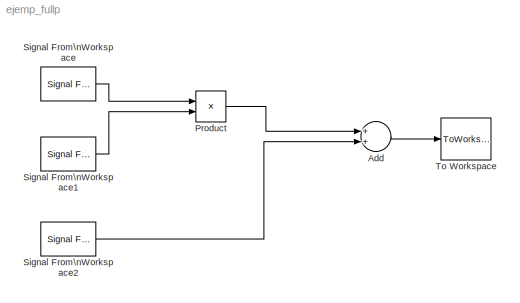
MODEL ejemp_fullp
KIND model
BLOCK [Sum] Add
  AccumDataTypeStr = double
  InputSameDT = off
  OutDataTypeStr = double
  Ports = [2, 1]
  SID = 17
  SaturateOnIntegerOverflow = off
BLOCK [Product] Product
  InputSameDT = off
  OutDataTypeStr = double
  Ports = [2, 1]
  RndMeth = Floor
  SID = 18
  SaturateOnIntegerOverflow = off
BLOCK [Reference] Signal From\nWorkspace  REF=dspsrcs4/Signal From\nWorkspace
  OutputAfterFinalValue = Setting to zero
  Ports = [0, 1]
  SID = 10
  SourceBlock = dspsrcs4/Signal From\nWorkspace
  SourceType = Signal From Workspace
  Ts = 1
  X = a
  ignoreOrWarnInputAndFrameLengths = off
  nsamps = 1
BLOCK [Reference] Signal From\nWorkspace1  REF=dspsrcs4/Signal From\nWorkspace
  OutputAfterFinalValue = Setting to zero
  Ports = [0, 1]
  SID = 11
  SourceBlock = dspsrcs4/Signal From\nWorkspace
  SourceType = Signal From Workspace
  Ts = 1
  X = b
  ignoreOrWarnInputAndFrameLengths = off
  nsamps = 1
BLOCK [Reference] Signal From\nWorkspace2  REF=dspsrcs4/Signal From\nWorkspace
  OutputAfterFinalValue = Setting to zero
  Ports = [0, 1]
  SID = 12
  SourceBlock = dspsrcs4/Signal From\nWorkspace
  SourceType = Signal From Workspace
  Ts = 1
  X = c
  ignoreOrWarnInputAndFrameLengths = off
  nsamps = 1
BLOCK [ToWorkspace] To Workspace
  MaxDataPoints = inf
  Ports = [1]
  SID = 13
  SampleTime = -1
  Save2DSignal = 2-D array (concatenate along first dimension)
  VariableName = s_out
LINE Add:1 -> To Workspace:1
LINE Product:1 -> Add:1
LINE Signal From\nWorkspace1:1 -> Product:2
LINE Signal From\nWorkspace2:1 -> Add:2
LINE Signal From\nWorkspace:1 -> Product:1
